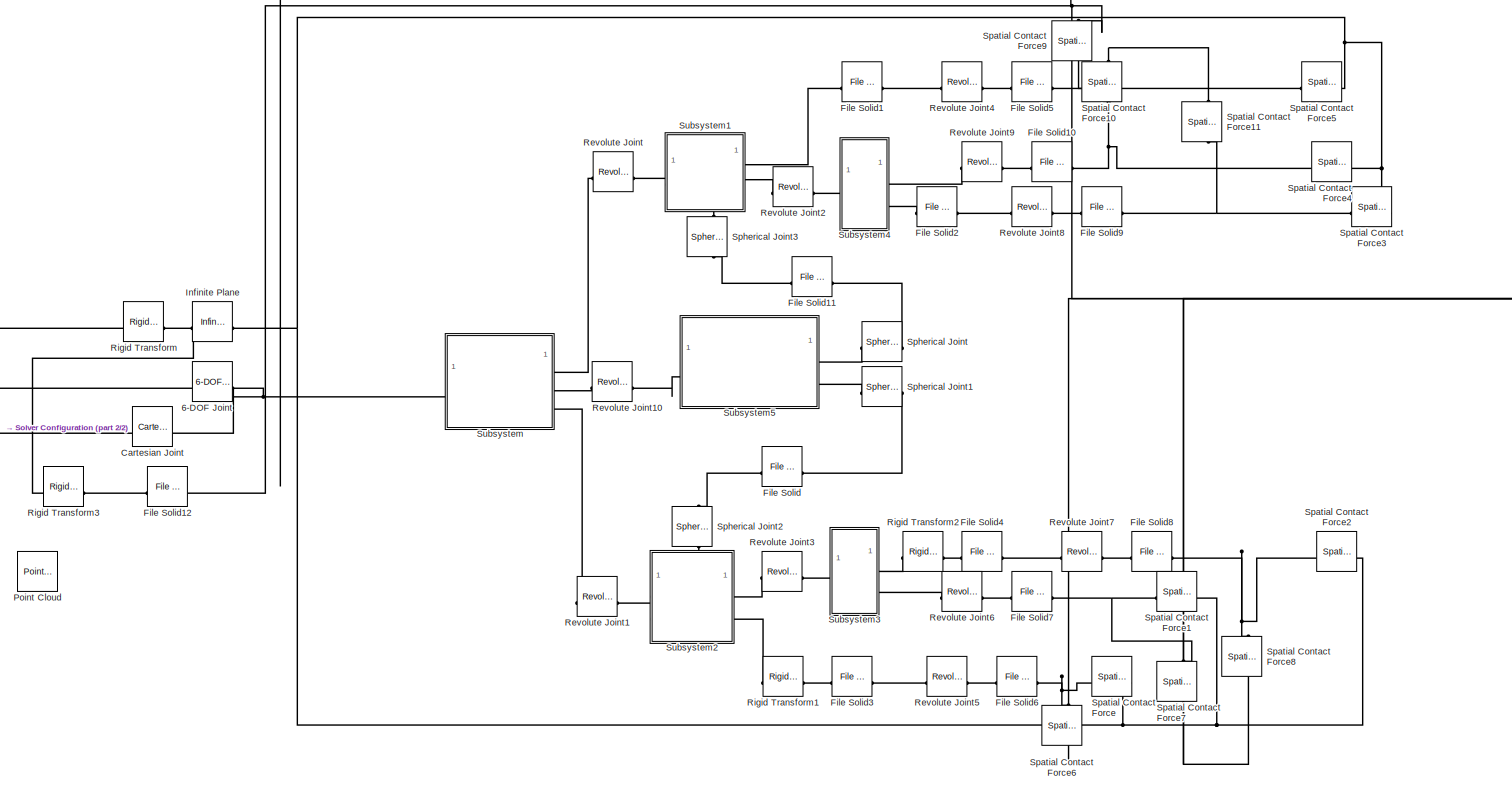
[diagram: root canvas - part 1/2, center side, full height]
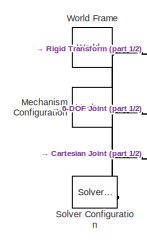
[diagram: root canvas - part 2/2, middle left region]
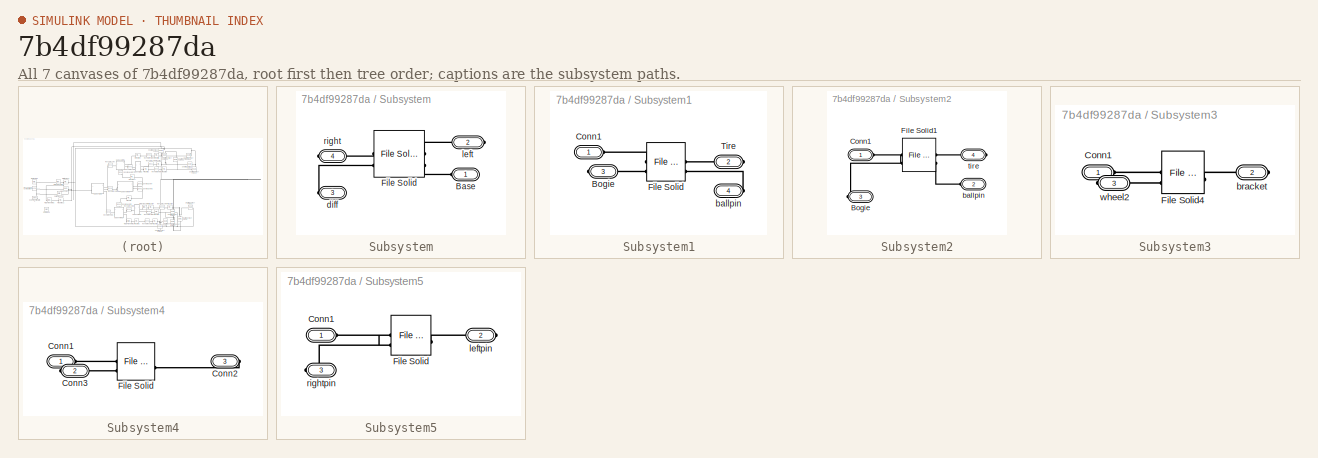
[diagram: thumbnail index - all 7 canvases of the model, root first then tree order]
MODEL slx_7b4df99287da
KIND model
CONFIG AbsTol = auto
CONFIG EnableMultiTasking = off
CONFIG FixedStep = auto
CONFIG MaxStep = auto
CONFIG MinStep = auto
CONFIG RelTol = 1e-3
CONFIG SampleTimeConstraint = Unconstrained
CONFIG SolverName = VariableStepAuto
CONFIG StartTime = 0.0
CONFIG StopTime = 20
BLOCK [Reference] 6-DOF Joint  REF=sm_lib/Joints/6-DOF Joint
  SourceBlock = sm_lib/Joints/6-DOF Joint
  SourceType = 6-DOF Joint
BLOCK [Reference] Cartesian Joint  REF=sm_lib/Joints/Cartesian
Joint
  Commented = on
  SourceBlock = sm_lib/Joints/Cartesian\nJoint
  SourceType = Cartesian\nJoint
BLOCK [Reference] File Solid  REF=sm_lib/Body Elements/File Solid
  SourceBlock = sm_lib/Body Elements/File Solid
  SourceType = File Solid
BLOCK [Reference] File Solid1  REF=sm_lib/Body Elements/File Solid
  SourceBlock = sm_lib/Body Elements/File Solid
  SourceType = File Solid
BLOCK [Reference] File Solid10  REF=sm_lib/Body Elements/File Solid
  SourceBlock = sm_lib/Body Elements/File Solid
  SourceType = File Solid
BLOCK [Reference] File Solid11  REF=sm_lib/Body Elements/File Solid
  SourceBlock = sm_lib/Body Elements/File Solid
  SourceType = File Solid
BLOCK [Reference] File Solid12  REF=sm_lib/Body Elements/File Solid
  SourceBlock = sm_lib/Body Elements/File Solid
  SourceType = File Solid
BLOCK [Reference] File Solid2  REF=sm_lib/Body Elements/File Solid
  SourceBlock = sm_lib/Body Elements/File Solid
  SourceType = File Solid
BLOCK [Reference] File Solid3  REF=sm_lib/Body Elements/File Solid
  SourceBlock = sm_lib/Body Elements/File Solid
  SourceType = File Solid
BLOCK [Reference] File Solid4  REF=sm_lib/Body Elements/File Solid
  SourceBlock = sm_lib/Body Elements/File Solid
  SourceType = File Solid
BLOCK [Reference] File Solid5  REF=sm_lib/Body Elements/File Solid
  SourceBlock = sm_lib/Body Elements/File Solid
  SourceType = File Solid
BLOCK [Reference] File Solid6  REF=sm_lib/Body Elements/File Solid
  SourceBlock = sm_lib/Body Elements/File Solid
  SourceType = File Solid
BLOCK [Reference] File Solid7  REF=sm_lib/Body Elements/File Solid
  SourceBlock = sm_lib/Body Elements/File Solid
  SourceType = File Solid
BLOCK [Reference] File Solid8  REF=sm_lib/Body Elements/File Solid
  SourceBlock = sm_lib/Body Elements/File Solid
  SourceType = File Solid
BLOCK [Reference] File Solid9  REF=sm_lib/Body Elements/File Solid
  SourceBlock = sm_lib/Body Elements/File Solid
  SourceType = File Solid
BLOCK [Reference] Infinite Plane  REF=sm_lib/Curves and Surfaces/Infinite Plane
  SourceBlock = sm_lib/Curves and Surfaces/Infinite Plane
  SourceType = Infinite Plane
BLOCK [Reference] Mechanism Configuration  REF=sm_lib/Utilities/Mechanism
Configuration
  SourceBlock = sm_lib/Utilities/Mechanism\nConfiguration
  SourceType = Mechanism\nConfiguration
BLOCK [Reference] Point Cloud  REF=sm_lib/Curves and Surfaces/Point Cloud
  SourceBlock = sm_lib/Curves and Surfaces/Point Cloud
  SourceType = Point Cloud
BLOCK [Reference] Revolute Joint  REF=sm_lib/Joints/Revolute Joint
  SourceBlock = sm_lib/Joints/Revolute Joint
  SourceType = Revolute Joint
BLOCK [Reference] Revolute Joint1  REF=sm_lib/Joints/Revolute Joint
  SourceBlock = sm_lib/Joints/Revolute Joint
  SourceType = Revolute Joint
BLOCK [Reference] Revolute Joint10  REF=sm_lib/Joints/Revolute Joint
  SourceBlock = sm_lib/Joints/Revolute Joint
  SourceType = Revolute Joint
BLOCK [Reference] Revolute Joint2  REF=sm_lib/Joints/Revolute Joint
  SourceBlock = sm_lib/Joints/Revolute Joint
  SourceType = Revolute Joint
BLOCK [Reference] Revolute Joint3  REF=sm_lib/Joints/Revolute Joint
  SourceBlock = sm_lib/Joints/Revolute Joint
  SourceType = Revolute Joint
BLOCK [Reference] Revolute Joint4  REF=sm_lib/Joints/Revolute Joint
  SourceBlock = sm_lib/Joints/Revolute Joint
  SourceType = Revolute Joint
BLOCK [Reference] Revolute Joint5  REF=sm_lib/Joints/Revolute Joint
  SourceBlock = sm_lib/Joints/Revolute Joint
  SourceType = Revolute Joint
BLOCK [Reference] Revolute Joint6  REF=sm_lib/Joints/Revolute Joint
  SourceBlock = sm_lib/Joints/Revolute Joint
  SourceType = Revolute Joint
BLOCK [Reference] Revolute Joint7  REF=sm_lib/Joints/Revolute Joint
  SourceBlock = sm_lib/Joints/Revolute Joint
  SourceType = Revolute Joint
BLOCK [Reference] Revolute Joint8  REF=sm_lib/Joints/Revolute Joint
  SourceBlock = sm_lib/Joints/Revolute Joint
  SourceType = Revolute Joint
BLOCK [Reference] Revolute Joint9  REF=sm_lib/Joints/Revolute Joint
  SourceBlock = sm_lib/Joints/Revolute Joint
  SourceType = Revolute Joint
BLOCK [Reference] Rigid Transform  REF=sm_lib/Frames and
Transforms/Rigid
Transform
  SourceBlock = sm_lib/Frames and\nTransforms/Rigid\nTransform
  SourceType = Rigid\nTransform
BLOCK [Reference] Rigid Transform1  REF=sm_lib/Frames and
Transforms/Rigid
Transform
  SourceBlock = sm_lib/Frames and\nTransforms/Rigid\nTransform
  SourceType = Rigid\nTransform
BLOCK [Reference] Rigid Transform2  REF=sm_lib/Frames and
Transforms/Rigid
Transform
  SourceBlock = sm_lib/Frames and\nTransforms/Rigid\nTransform
  SourceType = Rigid\nTransform
BLOCK [Reference] Rigid Transform3  REF=sm_lib/Frames and
Transforms/Rigid
Transform
  SourceBlock = sm_lib/Frames and\nTransforms/Rigid\nTransform
  SourceType = Rigid\nTransform
BLOCK [Reference] Solver Configuration  REF=nesl_utility/Solver
Configuration
  SourceBlock = nesl_utility/Solver\nConfiguration
  SourceType = Solver\nConfiguration
BLOCK [Reference] Spatial Contact Force  REF=sm_lib/Forces and
Torques/Spatial
Contact Force
  SourceBlock = sm_lib/Forces and\nTorques/Spatial\nContact Force
  SourceType = Spatial\nContact Force
BLOCK [Reference] Spatial Contact Force1  REF=sm_lib/Forces and
Torques/Spatial
Contact Force
  SourceBlock = sm_lib/Forces and\nTorques/Spatial\nContact Force
  SourceType = Spatial\nContact Force
BLOCK [Reference] Spatial Contact Force10  REF=sm_lib/Forces and
Torques/Spatial
Contact Force
  NameLocation = left
  SourceBlock = sm_lib/Forces and\nTorques/Spatial\nContact Force
  SourceType = Spatial\nContact Force
BLOCK [Reference] Spatial Contact Force11  REF=sm_lib/Forces and
Torques/Spatial
Contact Force
  NameLocation = left
  SourceBlock = sm_lib/Forces and\nTorques/Spatial\nContact Force
  SourceType = Spatial\nContact Force
BLOCK [Reference] Spatial Contact Force2  REF=sm_lib/Forces and
Torques/Spatial
Contact Force
  SourceBlock = sm_lib/Forces and\nTorques/Spatial\nContact Force
  SourceType = Spatial\nContact Force
BLOCK [Reference] Spatial Contact Force3  REF=sm_lib/Forces and
Torques/Spatial
Contact Force
  SourceBlock = sm_lib/Forces and\nTorques/Spatial\nContact Force
  SourceType = Spatial\nContact Force
BLOCK [Reference] Spatial Contact Force4  REF=sm_lib/Forces and
Torques/Spatial
Contact Force
  SourceBlock = sm_lib/Forces and\nTorques/Spatial\nContact Force
  SourceType = Spatial\nContact Force
BLOCK [Reference] Spatial Contact Force5  REF=sm_lib/Forces and
Torques/Spatial
Contact Force
  SourceBlock = sm_lib/Forces and\nTorques/Spatial\nContact Force
  SourceType = Spatial\nContact Force
BLOCK [Reference] Spatial Contact Force6  REF=sm_lib/Forces and
Torques/Spatial
Contact Force
  NameLocation = left
  SourceBlock = sm_lib/Forces and\nTorques/Spatial\nContact Force
  SourceType = Spatial\nContact Force
BLOCK [Reference] Spatial Contact Force7  REF=sm_lib/Forces and
Torques/Spatial
Contact Force
  NameLocation = left
  SourceBlock = sm_lib/Forces and\nTorques/Spatial\nContact Force
  SourceType = Spatial\nContact Force
BLOCK [Reference] Spatial Contact Force8  REF=sm_lib/Forces and
Torques/Spatial
Contact Force
  NameLocation = left
  SourceBlock = sm_lib/Forces and\nTorques/Spatial\nContact Force
  SourceType = Spatial\nContact Force
BLOCK [Reference] Spatial Contact Force9  REF=sm_lib/Forces and
Torques/Spatial
Contact Force
  NameLocation = left
  SourceBlock = sm_lib/Forces and\nTorques/Spatial\nContact Force
  SourceType = Spatial\nContact Force
BLOCK [Reference] Spherical Joint  REF=sm_lib/Joints/Spherical
Joint
  SourceBlock = sm_lib/Joints/Spherical\nJoint
  SourceType = Spherical\nJoint
BLOCK [Reference] Spherical Joint1  REF=sm_lib/Joints/Spherical
Joint
  SourceBlock = sm_lib/Joints/Spherical\nJoint
  SourceType = Spherical\nJoint
BLOCK [Reference] Spherical Joint2  REF=sm_lib/Joints/Spherical
Joint
  NameLocation = right
  SourceBlock = sm_lib/Joints/Spherical\nJoint
  SourceType = Spherical\nJoint
BLOCK [Reference] Spherical Joint3  REF=sm_lib/Joints/Spherical
Joint
  NameLocation = left
  SourceBlock = sm_lib/Joints/Spherical\nJoint
  SourceType = Spherical\nJoint
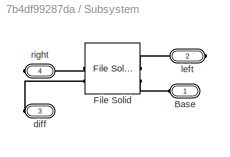
BLOCK [SubSystem] Subsystem
BLOCK [PMIOPort] Subsystem/Base
  Side = Left
BLOCK [Reference] Subsystem/File Solid  REF=sm_lib/Body Elements/File Solid
  SourceBlock = sm_lib/Body Elements/File Solid
  SourceType = File Solid
BLOCK [PMIOPort] Subsystem/diff
  Port = 3
  Side = Right
BLOCK [PMIOPort] Subsystem/left
  Port = 2
  Side = Right
BLOCK [PMIOPort] Subsystem/right
  Port = 4
  Side = Right
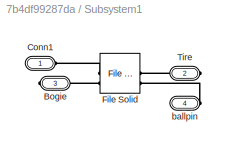
BLOCK [SubSystem] Subsystem1
  PortSchema = {"entries":[{"content":{"sides":[{"content":{"connectorIds":["LConn1"]},"type":"ConnectorPlacement.EquallySpacedRectSide","uuid":"d0e938ce-1795-41c6-af5a-f457807730e0"},{"content":{"connectorIds":["RConn1","RConn2"],"side":"RIGHT"},"type":"ConnectorPlacement.EquallySpacedRectSide","uuid":"601e57b0-7671-4310-8622-3c2f85a4d892"},{"content":{"side":"TOP"},"type":"ConnectorPlacement.EquallySpacedRectS...<+388ch>
BLOCK [PMIOPort] Subsystem1/Bogie
  Port = 3
  Side = Right
BLOCK [PMIOPort] Subsystem1/Conn1
  Side = Left
BLOCK [Reference] Subsystem1/File Solid  REF=sm_lib/Body Elements/File Solid
  SourceBlock = sm_lib/Body Elements/File Solid
  SourceType = File Solid
BLOCK [PMIOPort] Subsystem1/Tire
  Port = 2
  Side = Right
BLOCK [PMIOPort] Subsystem1/ballpin
  Port = 4
  Side = Right
BLOCK [SubSystem] Subsystem2
  PortSchema = {"entries":[{"content":{"sides":[{"content":{"connectorIds":["LConn1"]},"type":"ConnectorPlacement.EquallySpacedRectSide","uuid":"d0e938ce-1795-41c6-af5a-f457807730e0"},{"content":{"connectorIds":["RConn1","RConn2"],"side":"RIGHT"},"type":"ConnectorPlacement.EquallySpacedRectSide","uuid":"601e57b0-7671-4310-8622-3c2f85a4d892"},{"content":{"connectorIds":["LConn2"],"side":"TOP"},"type":"ConnectorPl...<+262ch>
BLOCK [PMIOPort] Subsystem2/Bogie
  NameLocation = top
  Port = 3
  Side = Right
BLOCK [PMIOPort] Subsystem2/Conn1
  Side = Left
BLOCK [Reference] Subsystem2/File Solid1  REF=sm_lib/Body Elements/File Solid
  SourceBlock = sm_lib/Body Elements/File Solid
  SourceType = File Solid
BLOCK [PMIOPort] Subsystem2/ballpin
  Port = 2
  Side = Left
BLOCK [PMIOPort] Subsystem2/tire
  Port = 4
  Side = Right
BLOCK [SubSystem] Subsystem3
BLOCK [PMIOPort] Subsystem3/Conn1
  Side = Left
BLOCK [Reference] Subsystem3/File Solid4  REF=sm_lib/Body Elements/File Solid
  SourceBlock = sm_lib/Body Elements/File Solid
  SourceType = File Solid
BLOCK [PMIOPort] Subsystem3/bracket
  Port = 2
  Side = Right
BLOCK [PMIOPort] Subsystem3/wheel2
  Port = 3
  Side = Right
BLOCK [SubSystem] Subsystem4
BLOCK [PMIOPort] Subsystem4/Conn1
  Side = Left
BLOCK [PMIOPort] Subsystem4/Conn2
  Port = 3
  Side = Right
BLOCK [PMIOPort] Subsystem4/Conn3
  Port = 2
  Side = Right
BLOCK [Reference] Subsystem4/File Solid  REF=sm_lib/Body Elements/File Solid
  SourceBlock = sm_lib/Body Elements/File Solid
  SourceType = File Solid
BLOCK [SubSystem] Subsystem5
BLOCK [PMIOPort] Subsystem5/Conn1
  Side = Left
BLOCK [Reference] Subsystem5/File Solid  REF=sm_lib/Body Elements/File Solid
  SourceBlock = sm_lib/Body Elements/File Solid
  SourceType = File Solid
BLOCK [PMIOPort] Subsystem5/leftpin
  Port = 2
  Side = Right
BLOCK [PMIOPort] Subsystem5/rightpin
  Port = 3
  Side = Right
BLOCK [Reference] World Frame  REF=sm_lib/Frames and
Transforms/World Frame
  SourceBlock = sm_lib/Frames and\nTransforms/World Frame
  SourceType = World Frame
PNET net1: 6-DOF Joint:LConn1 -- Cartesian Joint:LConn1 -- Mechanism Configuration:RConn1 -- Rigid Transform:LConn1 -- Solver Configuration:RConn1 -- World Frame:RConn1
PNET net2: 6-DOF Joint:RConn1 -- Cartesian Joint:RConn1 -- Subsystem:LConn1
PLINE File Solid10:LConn1 -- Revolute Joint9:RConn1
PNET net3: File Solid10:RConn1 -- Spatial Contact Force10:RConn1 -- Spatial Contact Force4:LConn1
PLINE File Solid11:LConn1 -- Spherical Joint3:RConn1
PLINE File Solid11:RConn1 -- Spherical Joint:RConn1
PLINE File Solid12:LConn1 -- Rigid Transform3:RConn1
PNET net4: File Solid12:RConn1 -- Spatial Contact Force10:LConn1 -- Spatial Contact Force11:LConn1 -- Spatial Contact Force6:RConn1 -- Spatial Contact Force7:RConn1 -- Spatial Contact Force8:RConn1 -- Spatial Contact Force9:LConn1
PLINE File Solid1:LConn1 -- Subsystem1:RConn1
PLINE File Solid1:RConn1 -- Revolute Joint4:LConn1
PLINE File Solid2:LConn1 -- Subsystem4:RConn2
PLINE File Solid2:RConn1 -- Revolute Joint8:LConn1
PLINE File Solid3:LConn1 -- Rigid Transform1:RConn1
PLINE File Solid3:RConn1 -- Revolute Joint5:LConn1
PLINE File Solid4:LConn1 -- Rigid Transform2:RConn1
PLINE File Solid4:RConn1 -- Revolute Joint7:LConn1
PLINE File Solid5:LConn1 -- Revolute Joint4:RConn1
PNET net5: File Solid5:RConn1 -- Spatial Contact Force5:LConn1 -- Spatial Contact Force9:RConn1
PLINE File Solid6:LConn1 -- Revolute Joint5:RConn1
PNET net6: File Solid6:RConn1 -- Spatial Contact Force6:LConn1 -- Spatial Contact Force:LConn1
PLINE File Solid7:LConn1 -- Revolute Joint6:RConn1
PNET net7: File Solid7:RConn1 -- Spatial Contact Force1:LConn1 -- Spatial Contact Force7:LConn1
PLINE File Solid8:LConn1 -- Revolute Joint7:RConn1
PNET net8: File Solid8:RConn1 -- Spatial Contact Force2:LConn1 -- Spatial Contact Force8:LConn1
PLINE File Solid9:LConn1 -- Revolute Joint8:RConn1
PNET net9: File Solid9:RConn1 -- Spatial Contact Force11:RConn1 -- Spatial Contact Force3:LConn1
PLINE File Solid:LConn1 -- Spherical Joint1:RConn1
PLINE File Solid:RConn1 -- Spherical Joint2:RConn1
PNET net10: Infinite Plane:LConn1 -- Rigid Transform3:LConn1 -- Rigid Transform:RConn1
PNET net11: Infinite Plane:RConn1 -- Spatial Contact Force1:RConn1 -- Spatial Contact Force2:RConn1 -- Spatial Contact Force3:RConn1 -- Spatial Contact Force4:RConn1 -- Spatial Contact Force5:RConn1 -- Spatial Contact Force:RConn1
PLINE Revolute Joint10:LConn1 -- Subsystem:RConn2
PLINE Revolute Joint10:RConn1 -- Subsystem5:LConn1
PLINE Revolute Joint1:LConn1 -- Subsystem:RConn3
PLINE Revolute Joint1:RConn1 -- Subsystem2:LConn1
PLINE Revolute Joint2:LConn1 -- Subsystem1:RConn2
PLINE Revolute Joint2:RConn1 -- Subsystem4:LConn1
PLINE Revolute Joint3:LConn1 -- Subsystem2:RConn1
PLINE Revolute Joint3:RConn1 -- Subsystem3:LConn1
PLINE Revolute Joint6:LConn1 -- Subsystem3:RConn2
PLINE Revolute Joint9:LConn1 -- Subsystem4:RConn1
PLINE Revolute Joint:LConn1 -- Subsystem:RConn1
PLINE Revolute Joint:RConn1 -- Subsystem1:LConn1
PLINE Rigid Transform1:LConn1 -- Subsystem2:RConn2
PLINE Rigid Transform2:LConn1 -- Subsystem3:RConn1
PLINE Spherical Joint1:LConn1 -- Subsystem5:RConn2
PLINE Spherical Joint2:LConn1 -- Subsystem2:LConn2
PLINE Spherical Joint3:LConn1 -- Subsystem1:RConn3
PLINE Spherical Joint:LConn1 -- Subsystem5:RConn1
PLINE Subsystem/Base:RConn1 -- Subsystem/File Solid:LConn2
PLINE Subsystem/File Solid:LConn1 -- Subsystem/left:RConn1
PLINE Subsystem/File Solid:RConn1 -- Subsystem/right:RConn1
PLINE Subsystem/File Solid:RConn2 -- Subsystem/diff:RConn1
PLINE Subsystem1/Bogie:RConn1 -- Subsystem1/File Solid:LConn2
PLINE Subsystem1/Conn1:RConn1 -- Subsystem1/File Solid:LConn1
PLINE Subsystem1/File Solid:RConn1 -- Subsystem1/Tire:RConn1
PLINE Subsystem1/File Solid:RConn2 -- Subsystem1/ballpin:RConn1
PLINE Subsystem2/Bogie:RConn1 -- Subsystem2/File Solid1:LConn2
PLINE Subsystem2/Conn1:RConn1 -- Subsystem2/File Solid1:LConn1
PLINE Subsystem2/File Solid1:RConn1 -- Subsystem2/tire:RConn1
PLINE Subsystem2/File Solid1:RConn2 -- Subsystem2/ballpin:RConn1
PLINE Subsystem3/Conn1:RConn1 -- Subsystem3/File Solid4:LConn1
PLINE Subsystem3/File Solid4:LConn2 -- Subsystem3/wheel2:RConn1
PLINE Subsystem3/File Solid4:RConn1 -- Subsystem3/bracket:RConn1
PLINE Subsystem4/Conn1:RConn1 -- Subsystem4/File Solid:LConn1
PLINE Subsystem4/Conn2:RConn1 -- Subsystem4/File Solid:RConn1
PLINE Subsystem4/Conn3:RConn1 -- Subsystem4/File Solid:LConn2
PLINE Subsystem5/Conn1:RConn1 -- Subsystem5/File Solid:LConn1
PLINE Subsystem5/File Solid:LConn2 -- Subsystem5/rightpin:RConn1
PLINE Subsystem5/File Solid:RConn1 -- Subsystem5/leftpin:RConn1
note: PNET lines group multi-terminal physical nets as a canonical sorted terminal list (undirected conserving connections); 2-terminal nets keep the pairwise PLINE form
